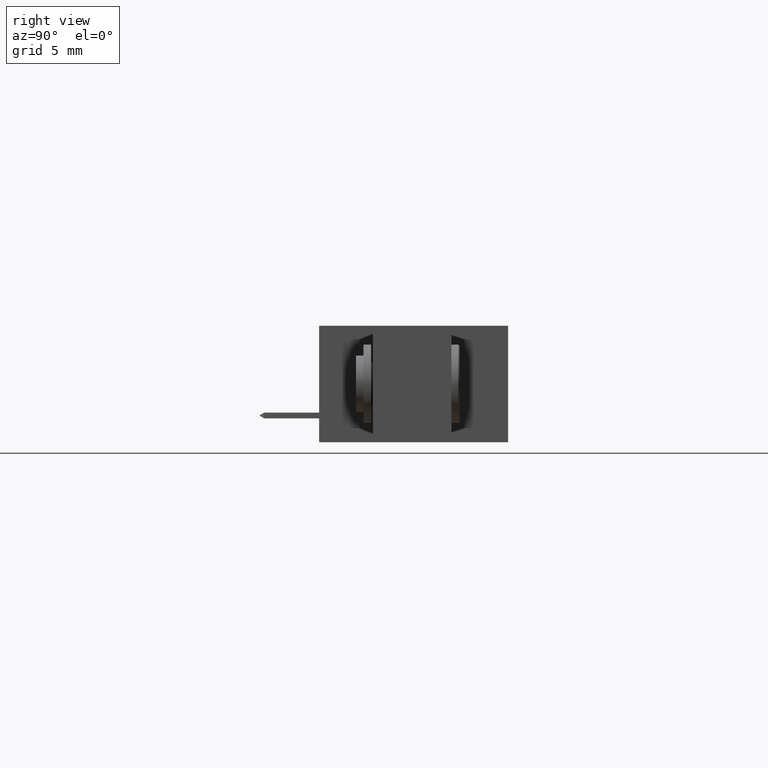
[diagram: clean part render]
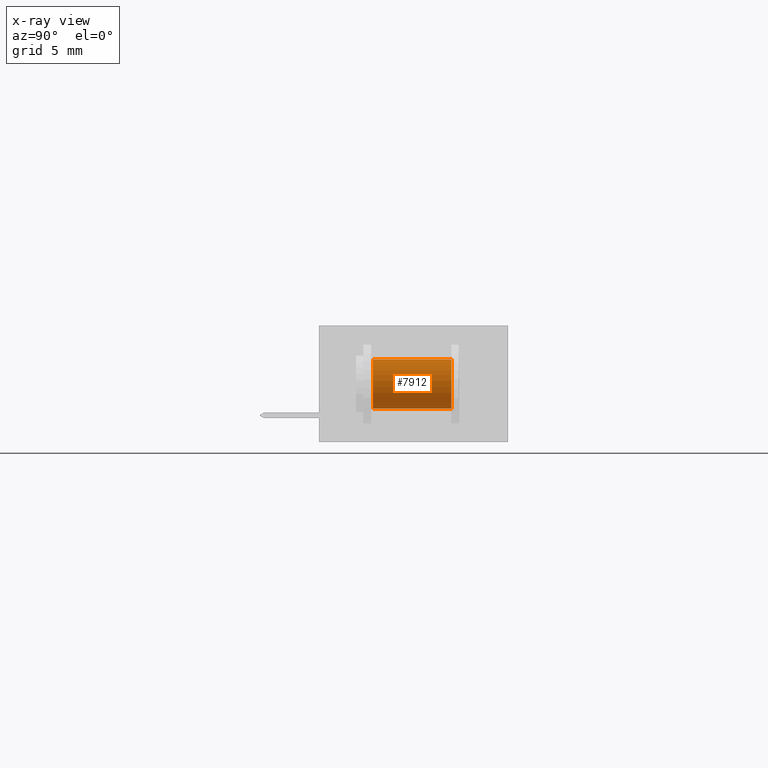
[diagram: x-ray — body ghosted, one internal face saturated and labeled with its STEP entity id]
A machine part, right view, then the same camera in x-ray: the body is ghosted and one INTERNAL B-rep face — a face not visible from any outside direction — is saturated and labeled: STEP entity #7912.
In plain terms, the highlighted cylindrical surface (edge-blend (fillet) strip) has radius 1.9812 mm, axis along (0, 1, 0).
Its self-contained STEP definition (entity closure, byte-faithful):
#40 = VERTEX_POINT ( 'NONE', #1899 ) ;
#130 = DIRECTION ( 'NONE',  ( 0.0000000000000000000, 1.000000000000000000, 0.0000000000000000000 ) ) ;
#561 = EDGE_CURVE ( 'NONE', #40, #7599, #8950, .T. ) ;
#782 = DIRECTION ( 'NONE',  ( -0.0000000000000000000, 1.000000000000000000, -0.0000000000000000000 ) ) ;
#1255 = EDGE_CURVE ( 'NONE', #4601, #7650, #4805, .T. ) ;
#1359 = CARTESIAN_POINT ( 'NONE',  ( 0.1550000000000001100, 0.1699999999999999800, -0.1070000000000000100 ) ) ;
#1486 = DIRECTION ( 'NONE',  ( 0.0000000000000000000, -1.000000000000000000, 0.0000000000000000000 ) ) ;
#1608 = FACE_OUTER_BOUND ( 'NONE', #8349, .T. ) ;
#1710 = CARTESIAN_POINT ( 'NONE',  ( 0.1550000000000001100, 0.0000000000000000000, -0.2630000000000000100 ) ) ;
#1899 = CARTESIAN_POINT ( 'NONE',  ( 0.1550000000000001100, 0.1699999999999999800, -0.2630000000000000100 ) ) ;
#1997 = DIRECTION ( 'NONE',  ( 0.0000000000000000000, 0.0000000000000000000, 1.000000000000000000 ) ) ;
#2109 = VECTOR ( 'NONE', #782, 39.37007874015748100 ) ;
#2936 = ORIENTED_EDGE ( 'NONE', *, *, #3125, .T. ) ;
#3125 = EDGE_CURVE ( 'NONE', #40, #4601, #3754, .T. ) ;
#3625 = CARTESIAN_POINT ( 'NONE',  ( 0.1550000000000001100, 0.4199999999999999800, -0.1070000000000000100 ) ) ;
#3668 = EDGE_CURVE ( 'NONE', #7650, #7599, #9893, .T. ) ;
#3742 = ORIENTED_EDGE ( 'NONE', *, *, #1255, .T. ) ;
#3754 = CIRCLE ( 'NONE', #8576, 0.07800000000000000000 ) ;
#3969 = ORIENTED_EDGE ( 'NONE', *, *, #561, .F. ) ;
#4427 = VECTOR ( 'NONE', #8406, 39.37007874015748100 ) ;
#4601 = VERTEX_POINT ( 'NONE', #1359 ) ;
#4805 = LINE ( 'NONE', #6615, #4427 ) ;
#5826 = ORIENTED_EDGE ( 'NONE', *, *, #3668, .T. ) ;
#6615 = CARTESIAN_POINT ( 'NONE',  ( 0.1550000000000001100, 0.0000000000000000000, -0.1070000000000000100 ) ) ;
#7189 = CARTESIAN_POINT ( 'NONE',  ( 0.1550000000000001100, 0.4199999999999999800, -0.2630000000000000100 ) ) ;
#7573 = DIRECTION ( 'NONE',  ( 0.0000000000000000000, 0.0000000000000000000, 1.000000000000000000 ) ) ;
#7599 = VERTEX_POINT ( 'NONE', #7189 ) ;
#7642 = CARTESIAN_POINT ( 'NONE',  ( 0.1550000000000001100, 0.0000000000000000000, -0.1850000000000000000 ) ) ;
#7650 = VERTEX_POINT ( 'NONE', #3625 ) ;
#7719 = DIRECTION ( 'NONE',  ( -0.0000000000000000000, 1.000000000000000000, -0.0000000000000000000 ) ) ;
#7779 = CARTESIAN_POINT ( 'NONE',  ( 0.1550000000000001100, 0.1699999999999999800, -0.1850000000000000000 ) ) ;
#7912 = ADVANCED_FACE ( 'NONE', ( #1608 ), #9400, .F. ) ;
#8004 = CARTESIAN_POINT ( 'NONE',  ( 0.1550000000000001100, 0.4199999999999999800, -0.1850000000000000000 ) ) ;
#8349 = EDGE_LOOP ( 'NONE', ( #3969, #2936, #3742, #5826 ) ) ;
#8406 = DIRECTION ( 'NONE',  ( -0.0000000000000000000, 1.000000000000000000, -0.0000000000000000000 ) ) ;
#8576 = AXIS2_PLACEMENT_3D ( 'NONE', #7779, #1486, #9375 ) ;
#8950 = LINE ( 'NONE', #1710, #2109 ) ;
#9355 = AXIS2_PLACEMENT_3D ( 'NONE', #7642, #7719, #7573 ) ;
#9375 = DIRECTION ( 'NONE',  ( 0.0000000000000000000, 0.0000000000000000000, -1.000000000000000000 ) ) ;
#9400 = CYLINDRICAL_SURFACE ( 'NONE', #9355, 0.07800000000000000000 ) ;
#9893 = CIRCLE ( 'NONE', #10872, 0.07800000000000000000 ) ;
#10872 = AXIS2_PLACEMENT_3D ( 'NONE', #8004, #130, #1997 ) ;